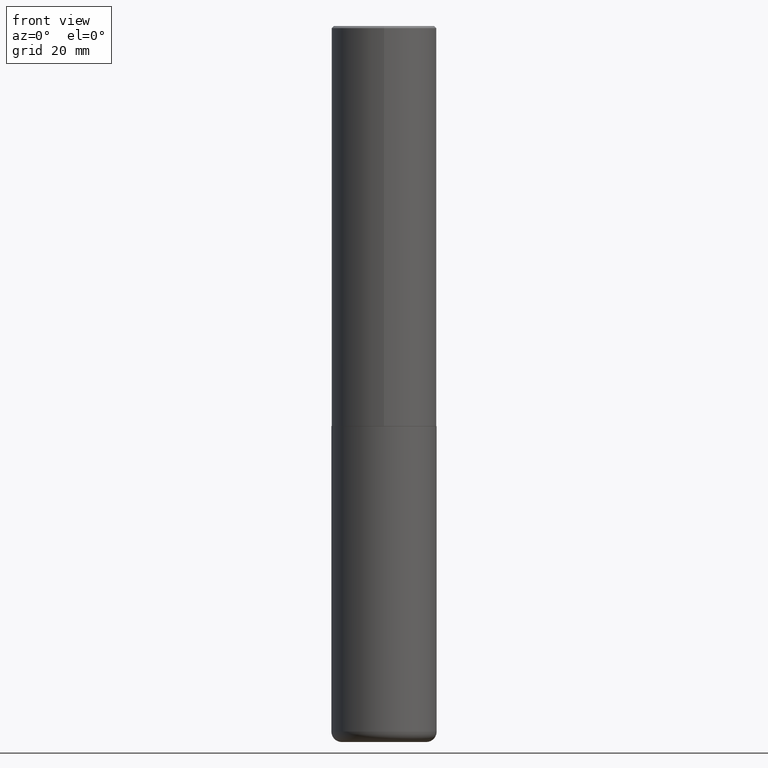
[diagram: clean part render]
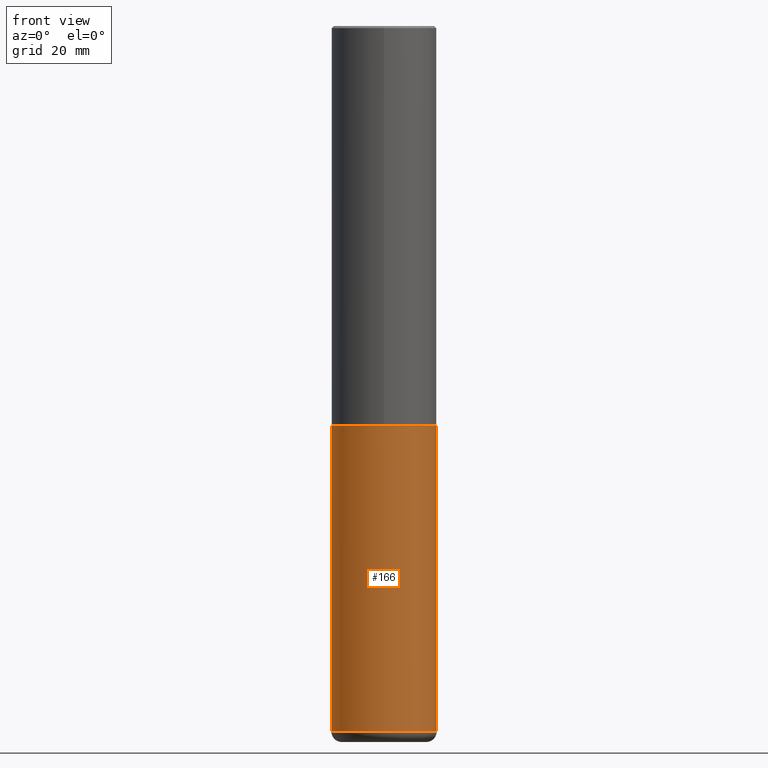
[diagram: same view with one face highlighted and labeled with its STEP entity id]
A machine part, front view. The second image highlights one B-rep face of the part: STEP entity #166.
In plain terms, the highlighted cylindrical surface (partial cylindrical patch) has radius 12.5006 mm, axis along (-0, 0, 1).
Its self-contained STEP definition (entity closure, byte-faithful):
#1 = CARTESIAN_POINT ( 'NONE',  ( 1.612664404238788252E-28, -2.302457368900112328E-14, -6.594500000000000028 ) ) ;
#45 = EDGE_LOOP ( 'NONE', ( #160, #270, #183, #267 ) ) ;
#69 = AXIS2_PLACEMENT_3D ( 'NONE', #116, #143, #148 ) ;
#76 = CIRCLE ( 'NONE', #69, 0.4921499999999999764 ) ;
#92 = EDGE_CURVE ( 'NONE', #298, #275, #391, .T. ) ;
#99 = DIRECTION ( 'NONE',  ( -2.445468806185136597E-29, 3.491481338843145583E-15, 1.000000000000000000 ) ) ;
#102 = AXIS2_PLACEMENT_3D ( 'NONE', #130, #261, #193 ) ;
#110 = EDGE_CURVE ( 'NONE', #298, #332, #342, .T. ) ;
#115 = CARTESIAN_POINT ( 'NONE',  ( -0.4921500000000002539, -1.952763761495778959E-14, -6.594500000000000028 ) ) ;
#116 = CARTESIAN_POINT ( 'NONE',  ( 9.146297882013029477E-29, -1.305848935540725085E-14, -3.740100000000000424 ) ) ;
#120 = AXIS2_PLACEMENT_3D ( 'NONE', #1, #99, #237 ) ;
#130 = CARTESIAN_POINT ( 'NONE',  ( 0.000000000000000000, 0.000000000000000000, 0.000000000000000000 ) ) ;
#134 = VERTEX_POINT ( 'NONE', #135 ) ;
#135 = CARTESIAN_POINT ( 'NONE',  ( 0.4921499999999999764, -1.649515443723054663E-14, -3.740100000000000424 ) ) ;
#143 = DIRECTION ( 'NONE',  ( -2.445468806185136597E-29, 3.491481338843145583E-15, 1.000000000000000000 ) ) ;
#148 = DIRECTION ( 'NONE',  ( 1.000000000000000000, -6.982962677686265922E-15, 0.000000000000000000 ) ) ;
#150 = VECTOR ( 'NONE', #297, 39.37007874015748143 ) ;
#160 = ORIENTED_EDGE ( 'NONE', *, *, #92, .F. ) ;
#166 = ADVANCED_FACE ( 'NONE', ( #266 ), #195, .T. ) ;
#183 = ORIENTED_EDGE ( 'NONE', *, *, #254, .T. ) ;
#193 = DIRECTION ( 'NONE',  ( 1.000000000000000000, -6.982962677686265922E-15, 4.876176775795935793E-29 ) ) ;
#195 = CYLINDRICAL_SURFACE ( 'NONE', #102, 0.4921499999999999764 ) ;
#210 = VECTOR ( 'NONE', #354, 39.37007874015748143 ) ;
#234 = CARTESIAN_POINT ( 'NONE',  ( -0.4921499999999999764, 3.496936074043332897E-15, -2.420853904668951509E-29 ) ) ;
#236 = CARTESIAN_POINT ( 'NONE',  ( 0.4921499999999999764, -3.436665081823295777E-15, 2.399810400207969603E-29 ) ) ;
#237 = DIRECTION ( 'NONE',  ( 1.000000000000000000, -6.982962677686266711E-15, 0.000000000000000000 ) ) ;
#254 = EDGE_CURVE ( 'NONE', #332, #134, #385, .T. ) ;
#261 = DIRECTION ( 'NONE',  ( -2.445468806185136597E-29, 3.491481338843145583E-15, 1.000000000000000000 ) ) ;
#266 = FACE_OUTER_BOUND ( 'NONE', #45, .T. ) ;
#267 = ORIENTED_EDGE ( 'NONE', *, *, #292, .F. ) ;
#270 = ORIENTED_EDGE ( 'NONE', *, *, #110, .T. ) ;
#275 = VERTEX_POINT ( 'NONE', #284 ) ;
#284 = CARTESIAN_POINT ( 'NONE',  ( -0.4921499999999999764, -1.454459544816085417E-14, -3.740100000000000424 ) ) ;
#292 = EDGE_CURVE ( 'NONE', #275, #134, #76, .T. ) ;
#297 = DIRECTION ( 'NONE',  ( -2.445468806185136877E-29, 3.491481338843145188E-15, 1.000000000000000000 ) ) ;
#298 = VERTEX_POINT ( 'NONE', #115 ) ;
#332 = VERTEX_POINT ( 'NONE', #368 ) ;
#342 = CIRCLE ( 'NONE', #120, 0.4921499999999999209 ) ;
#354 = DIRECTION ( 'NONE',  ( -2.445468806185136877E-29, 3.491481338843145188E-15, 1.000000000000000000 ) ) ;
#368 = CARTESIAN_POINT ( 'NONE',  ( 0.4921500000000002539, -2.646123877082442063E-14, -6.594500000000000028 ) ) ;
#385 = LINE ( 'NONE', #236, #210 ) ;
#391 = LINE ( 'NONE', #234, #150 ) ;